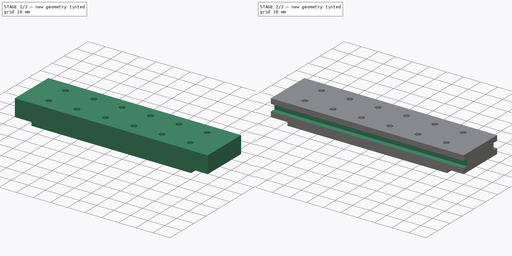
[diagram: build sequence overview — one tinted view per stage of 2, left to right]
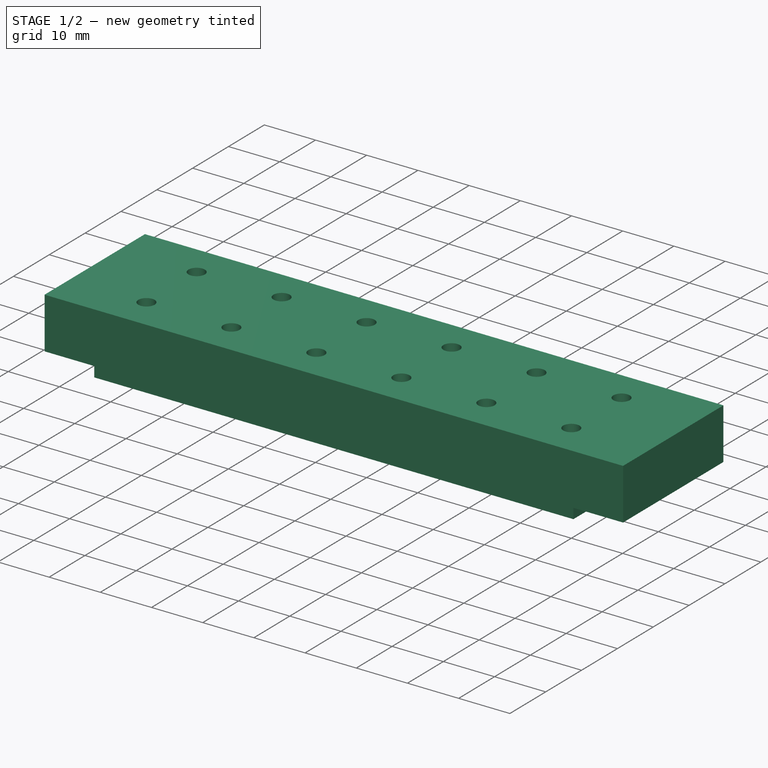
[diagram: stage 1 of 2 — iso view after this stage's code; geometry added in this stage tinted green]
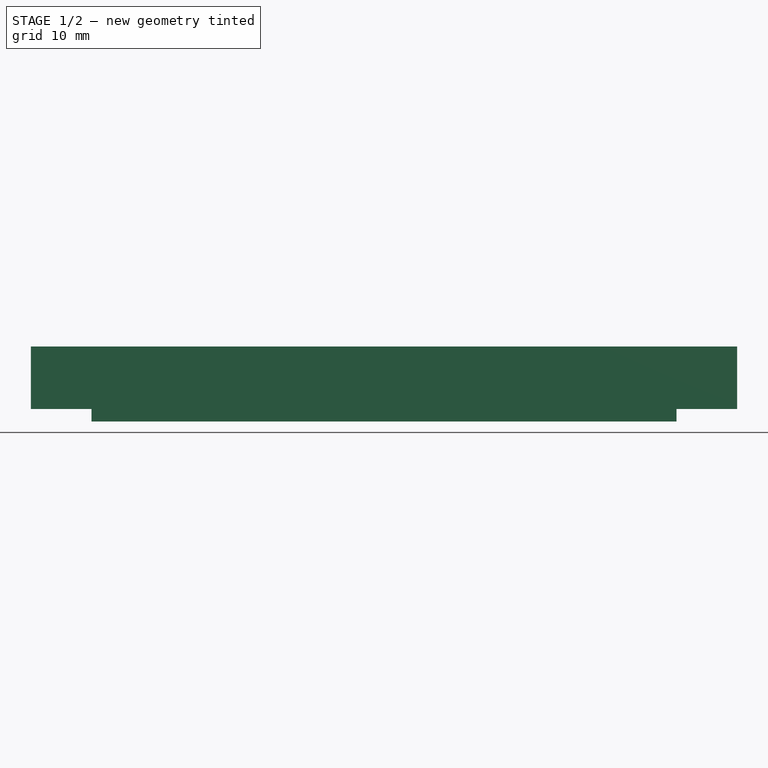
[diagram: stage 1 of 2 — front view after this stage's code; geometry added in this stage tinted green]
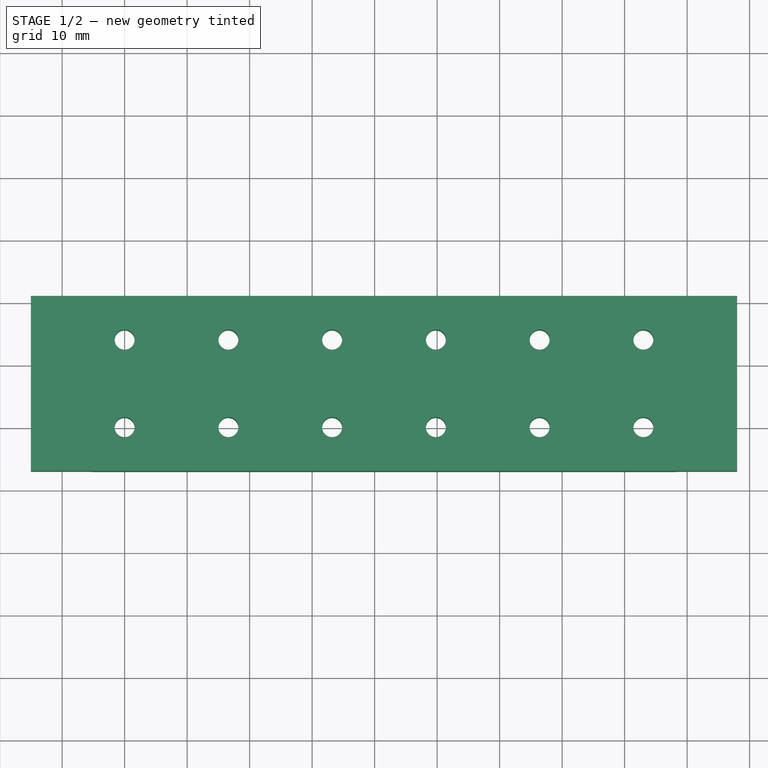
[diagram: stage 1 of 2 — top view after this stage's code; geometry added in this stage tinted green]
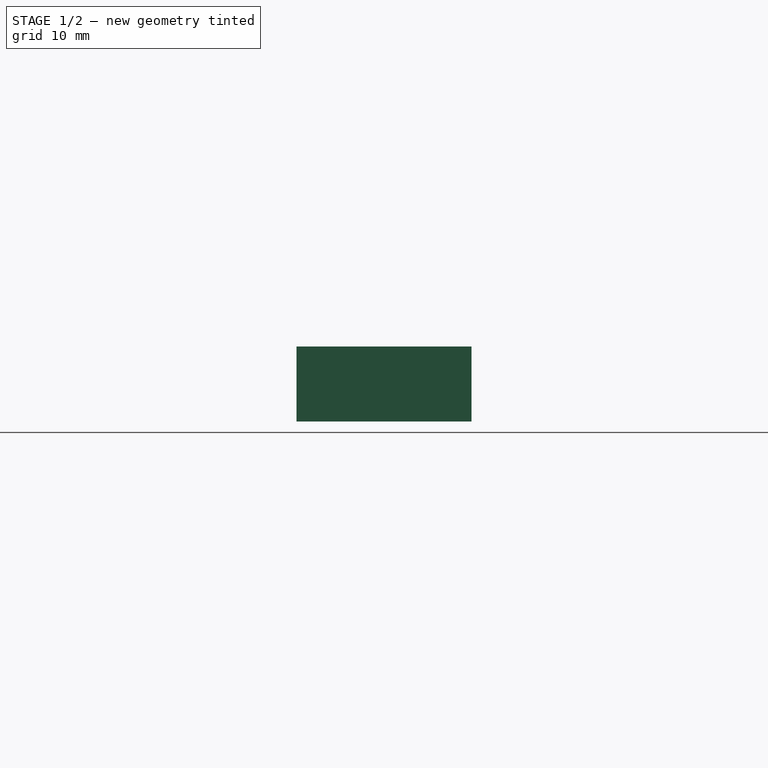
[diagram: stage 1 of 2 — right view after this stage's code; geometry added in this stage tinted green]
FCSTD DOCUMENT  (FreeCAD 0.17R13541 (Git))
Label: BikeLights1
License: All rights reserved
LicenseURL: http://en.wikipedia.org/wiki/All_rights_reserved
objects: Sketcher::SketchObject×4, PartDesign::Pad×2, PartDesign::Pocket×2, PartDesign::Body×1
note: 13 computed .brp shape members not serialized (recipe doc carries the construction recipe); baked Part::Feature solids carry a one-line shape summary decoded from their .brp

FEATURE [Sketcher::SketchObject] Sketch
  MapMode = 5
  Support = -> [XY_Plane]
  sketch-geometry (27):
    g0: LineSegment StartX=-15 StartY=-7 StartZ=0 EndX=98 EndY=-7 EndZ=0
    g1: LineSegment StartX=98 StartY=-7 StartZ=0 EndX=98 EndY=21 EndZ=0
    g2: LineSegment StartX=98 StartY=21 StartZ=0 EndX=-15 EndY=21 EndZ=0
    g3: LineSegment StartX=-15 StartY=21 StartZ=0 EndX=-15 EndY=-7 EndZ=0
    g4: Circle CenterX=1e-12 CenterY=0 CenterZ=0 NormalX=0 NormalY=0 NormalZ=1 AngleXU=0 Radius=1.6
    g5: Circle CenterX=0 CenterY=14 CenterZ=0 NormalX=0 NormalY=0 NormalZ=1 AngleXU=0 Radius=1.6
    g6: LineSegment [constr] StartX=1e-12 StartY=0 StartZ=0 EndX=0 EndY=14 EndZ=0
    g7: Circle CenterX=16.6 CenterY=2e-12 CenterZ=0 NormalX=0 NormalY=0 NormalZ=1 AngleXU=0 Radius=1.6
    g8: LineSegment [constr] StartX=1e-12 StartY=0 StartZ=0 EndX=16.6 EndY=2e-12 EndZ=0
    g9: Circle CenterX=16.6 CenterY=14 CenterZ=0 NormalX=0 NormalY=0 NormalZ=1 AngleXU=0 Radius=1.6
    g10: LineSegment [constr] StartX=16.6 StartY=2e-12 StartZ=0 EndX=16.6 EndY=14 EndZ=0
    g11: Circle CenterX=33.2 CenterY=3e-12 CenterZ=0 NormalX=0 NormalY=0 NormalZ=1 AngleXU=0 Radius=1.6
    g12: LineSegment [constr] StartX=16.6 StartY=2e-12 StartZ=0 EndX=33.2 EndY=3e-12 EndZ=0
    g13: Circle CenterX=33.2 CenterY=14 CenterZ=0 NormalX=0 NormalY=0 NormalZ=1 AngleXU=0 Radius=1.6
    g14: LineSegment [constr] StartX=33.2 StartY=3e-12 StartZ=0 EndX=33.2 EndY=14 EndZ=0
    g15: Circle CenterX=49.8 CenterY=5e-12 CenterZ=0 NormalX=0 NormalY=0 NormalZ=1 AngleXU=0 Radius=1.6
    g16: LineSegment [constr] StartX=33.2 StartY=3e-12 StartZ=0 EndX=49.8 EndY=5e-12 EndZ=0
    g17: Circle CenterX=49.8 CenterY=14 CenterZ=0 NormalX=0 NormalY=0 NormalZ=1 AngleXU=0 Radius=1.6
    g18: LineSegment [constr] StartX=49.8 StartY=5e-12 StartZ=0 EndX=49.8 EndY=14 EndZ=0
    g19: Circle CenterX=66.4 CenterY=7e-12 CenterZ=0 NormalX=0 NormalY=0 NormalZ=1 AngleXU=0 Radius=1.6
    g20: LineSegment [constr] StartX=49.8 StartY=5e-12 StartZ=0 EndX=66.4 EndY=7e-12 EndZ=0
    g21: Circle CenterX=66.4 CenterY=14 CenterZ=0 NormalX=0 NormalY=0 NormalZ=1 AngleXU=0 Radius=1.6
    g22: LineSegment [constr] StartX=66.4 StartY=7e-12 StartZ=0 EndX=66.4 EndY=14 EndZ=0
    g23: Circle CenterX=83 CenterY=9e-12 CenterZ=0 NormalX=0 NormalY=0 NormalZ=1 AngleXU=0 Radius=1.6
    g24: LineSegment [constr] StartX=66.4 StartY=7e-12 StartZ=0 EndX=83 EndY=9e-12 EndZ=0
    g25: Circle CenterX=83 CenterY=14 CenterZ=0 NormalX=0 NormalY=0 NormalZ=1 AngleXU=0 Radius=1.6
    g26: LineSegment [constr] StartX=83 StartY=9e-12 StartZ=0 EndX=83 EndY=14 EndZ=0
  constraints (70):
    c: Coincident(g0,g1)
    c: Coincident(g1,g2)
    c: Coincident(g2,g3)
    c: Coincident(g3,g0)
    c: Horizontal(g0)
    c: Horizontal(g2)
    c: Vertical(g1)
    c: Vertical(g3)
    c: DistanceY(g0,g-1) = 7
    c: DistanceY(g-1,g2) = 21
    c: Radius(g4) = 1.6
    c: Equal(g4,g5) = 3
    c: Coincident(g4,g6)
    c: Coincident(g5,g6)
    c: Distance(g6) = 14
    c: Angle(g6) = 1.5708
    c: Equal(g4,g7) = 3
    c: Coincident(g4,g8)
    c: Coincident(g7,g8)
    c: Distance(g8) = 16.6
    c: Perpendicular(g8,g6)
    c: Equal(g4,g9) = 3
    c: Coincident(g7,g10)
    c: Coincident(g9,g10)
    c: Equal(g6,g10)
    c: Parallel(g10,g6)
    c: Equal(g4,g11) = 3
    c: Coincident(g7,g12)
    c: Coincident(g11,g12)
    c: Equal(g8,g12)
    c: Perpendicular(g12,g6)
    c: Equal(g4,g13) = 3
    c: Coincident(g11,g14)
    c: Coincident(g13,g14)
    c: Equal(g6,g14)
    c: Parallel(g14,g6)
    c: Equal(g4,g15) = 3
    c: Coincident(g11,g16)
    c: Coincident(g15,g16)
    c: Equal(g8,g16)
    c: Perpendicular(g16,g6)
    c: Equal(g4,g17) = 3
    c: Coincident(g15,g18)
    c: Coincident(g17,g18)
    c: Equal(g6,g18)
    c: Parallel(g18,g6)
    c: Equal(g4,g19) = 3
    c: Coincident(g15,g20)
    c: Coincident(g19,g20)
    c: Equal(g8,g20)
    c: Perpendicular(g20,g6)
    c: Equal(g4,g21) = 3
    c: Coincident(g19,g22)
    c: Coincident(g21,g22)
    c: Equal(g6,g22)
    c: Parallel(g22,g6)
    c: Equal(g4,g23) = 3
    c: Coincident(g19,g24)
    c: Coincident(g23,g24)
    c: Equal(g8,g24)
    c: Perpendicular(g24,g6)
    c: Equal(g4,g25) = 3
    c: Coincident(g23,g26)
    c: Coincident(g25,g26)
    c: Equal(g6,g26)
    c: Parallel(g26,g6)
    c: PointOnObject(g5,g-2)
    c: Coincident(g4,g-1)
    c: DistanceX(g23,g0) = 15
    c: DistanceX(g0,g-1) = 15
FEATURE [Sketcher::SketchObject] Sketch001
  MapMode = 5
  Support = -> [XY_Plane]
  sketch-geometry (63):
    g0: LineSegment StartX=-5.3 StartY=-7 StartZ=0 EndX=88.3 EndY=-7 EndZ=0
    g1: LineSegment StartX=88.3 StartY=-7 StartZ=0 EndX=88.3 EndY=21 EndZ=0
    g2: LineSegment StartX=88.3 StartY=21 StartZ=0 EndX=-5.3 EndY=21 EndZ=0
    g3: LineSegment StartX=-5.3 StartY=21 StartZ=0 EndX=-5.3 EndY=-7 EndZ=0
    g4: LineSegment StartX=-2.6 StartY=-2.6 StartZ=0 EndX=2.6 EndY=-2.6 EndZ=0
    g5: LineSegment StartX=2.6 StartY=-2.6 StartZ=0 EndX=2.6 EndY=2.6 EndZ=0
    g6: LineSegment StartX=2.6 StartY=2.6 StartZ=0 EndX=-2.6 EndY=2.6 EndZ=0
    g7: LineSegment StartX=-2.6 StartY=2.6 StartZ=0 EndX=-2.6 EndY=-2.6 EndZ=0
    g8: LineSegment StartX=2.6 StartY=11.4 StartZ=0 EndX=2.6 EndY=16.6 EndZ=0
    g9: LineSegment StartX=2.6 StartY=16.6 StartZ=0 EndX=-2.6 EndY=16.6 EndZ=0
    g10: LineSegment StartX=-2.6 StartY=16.6 StartZ=0 EndX=-2.6 EndY=11.4 EndZ=0
    g11: LineSegment StartX=-2.6 StartY=11.4 StartZ=0 EndX=2.6 EndY=11.4 EndZ=0
    g12: LineSegment [constr] StartX=2.6 StartY=-2.6 StartZ=0 EndX=2.6 EndY=11.4 EndZ=0
    g13: LineSegment StartX=19.2 StartY=-2.6 StartZ=0 EndX=19.2 EndY=2.6 EndZ=0
    g14: LineSegment StartX=19.2 StartY=2.6 StartZ=0 EndX=14 EndY=2.6 EndZ=0
    g15: LineSegment StartX=14 StartY=2.6 StartZ=0 EndX=14 EndY=-2.6 EndZ=0
    g16: LineSegment StartX=14 StartY=-2.6 StartZ=0 EndX=19.2 EndY=-2.6 EndZ=0
    g17: LineSegment [constr] StartX=2.6 StartY=-2.6 StartZ=0 EndX=19.2 EndY=-2.6 EndZ=0
    g18: LineSegment StartX=19.2 StartY=11.4 StartZ=0 EndX=19.2 EndY=16.6 EndZ=0
    g19: LineSegment StartX=19.2 StartY=16.6 StartZ=0 EndX=14 EndY=16.6 EndZ=0
    g20: LineSegment StartX=14 StartY=16.6 StartZ=0 EndX=14 EndY=11.4 EndZ=0
    g21: LineSegment StartX=14 StartY=11.4 StartZ=0 EndX=19.2 EndY=11.4 EndZ=0
    g22: LineSegment [constr] StartX=19.2 StartY=-2.6 StartZ=0 EndX=19.2 EndY=11.4 EndZ=0
    g23: LineSegment StartX=35.8 StartY=-2.6 StartZ=0 EndX=35.8 EndY=2.6 EndZ=0
    g24: LineSegment StartX=35.8 StartY=2.6 StartZ=0 EndX=30.6 EndY=2.6 EndZ=0
    g25: LineSegment StartX=30.6 StartY=2.6 StartZ=0 EndX=30.6 EndY=-2.6 EndZ=0
    g26: LineSegment StartX=30.6 StartY=-2.6 StartZ=0 EndX=35.8 EndY=-2.6 EndZ=0
    g27: LineSegment [constr] StartX=19.2 StartY=-2.6 StartZ=0 EndX=35.8 EndY=-2.6 EndZ=0
    g28: LineSegment StartX=35.8 StartY=11.4 StartZ=0 EndX=35.8 EndY=16.6 EndZ=0
    g29: LineSegment StartX=35.8 StartY=16.6 StartZ=0 EndX=30.6 EndY=16.6 EndZ=0
    g30: LineSegment StartX=30.6 StartY=16.6 StartZ=0 EndX=30.6 EndY=11.4 EndZ=0
    g31: LineSegment StartX=30.6 StartY=11.4 StartZ=0 EndX=35.8 EndY=11.4 EndZ=0
    g32: LineSegment [constr] StartX=35.8 StartY=-2.6 StartZ=0 EndX=35.8 EndY=11.4 EndZ=0
    g33: LineSegment StartX=52.4 StartY=-2.6 StartZ=0 EndX=52.4 EndY=2.6 EndZ=0
    g34: LineSegment StartX=52.4 StartY=2.6 StartZ=0 EndX=47.2 EndY=2.6 EndZ=0
    g35: LineSegment StartX=47.2 StartY=2.6 StartZ=0 EndX=47.2 EndY=-2.6 EndZ=0
    g36: LineSegment StartX=47.2 StartY=-2.6 StartZ=0 EndX=52.4 EndY=-2.6 EndZ=0
    g37: LineSegment [constr] StartX=35.8 StartY=-2.6 StartZ=0 EndX=52.4 EndY=-2.6 EndZ=0
    g38: LineSegment StartX=52.4 StartY=11.4 StartZ=0 EndX=52.4 EndY=16.6 EndZ=0
    g39: LineSegment StartX=52.4 StartY=16.6 StartZ=0 EndX=47.2 EndY=16.6 EndZ=0
    g40: LineSegment StartX=47.2 StartY=16.6 StartZ=0 EndX=47.2 EndY=11.4 EndZ=0
    g41: LineSegment StartX=47.2 StartY=11.4 StartZ=0 EndX=52.4 EndY=11.4 EndZ=0
    g42: LineSegment [constr] StartX=52.4 StartY=-2.6 StartZ=0 EndX=52.4 EndY=11.4 EndZ=0
    g43: LineSegment StartX=69 StartY=-2.6 StartZ=0 EndX=69 EndY=2.6 EndZ=0
    g44: LineSegment StartX=69 StartY=2.6 StartZ=0 EndX=63.8 EndY=2.6 EndZ=0
    g45: LineSegment StartX=63.8 StartY=2.6 StartZ=0 EndX=63.8 EndY=-2.6 EndZ=0
    g46: LineSegment StartX=63.8 StartY=-2.6 StartZ=0 EndX=69 EndY=-2.6 EndZ=0
    g47: LineSegment [constr] StartX=52.4 StartY=-2.6 StartZ=0 EndX=69 EndY=-2.6 EndZ=0
    g48: LineSegment StartX=69 StartY=11.4 StartZ=0 EndX=69 EndY=16.6 EndZ=0
    g49: LineSegment StartX=69 StartY=16.6 StartZ=0 EndX=63.8 EndY=16.6 EndZ=0
    g50: LineSegment StartX=63.8 StartY=16.6 StartZ=0 EndX=63.8 EndY=11.4 EndZ=0
    g51: LineSegment StartX=63.8 StartY=11.4 StartZ=0 EndX=69 EndY=11.4 EndZ=0
    g52: LineSegment [constr] StartX=69 StartY=-2.6 StartZ=0 EndX=69 EndY=11.4 EndZ=0
    g53: LineSegment StartX=85.6 StartY=-2.6 StartZ=0 EndX=85.6 EndY=2.6 EndZ=0
    g54: LineSegment StartX=85.6 StartY=2.6 StartZ=0 EndX=80.4 EndY=2.6 EndZ=0
    g55: LineSegment StartX=80.4 StartY=2.6 StartZ=0 EndX=80.4 EndY=-2.6 EndZ=0
    g56: LineSegment StartX=80.4 StartY=-2.6 StartZ=0 EndX=85.6 EndY=-2.6 EndZ=0
    g57: LineSegment [constr] StartX=69 StartY=-2.6 StartZ=0 EndX=85.6 EndY=-2.6 EndZ=0
    g58: LineSegment StartX=85.6 StartY=11.4 StartZ=0 EndX=85.6 EndY=16.6 EndZ=0
    g59: LineSegment StartX=85.6 StartY=16.6 StartZ=0 EndX=80.4 EndY=16.6 EndZ=0
    g60: LineSegment StartX=80.4 StartY=16.6 StartZ=0 EndX=80.4 EndY=11.4 EndZ=0
    g61: LineSegment StartX=80.4 StartY=11.4 StartZ=0 EndX=85.6 EndY=11.4 EndZ=0
    g62: LineSegment [constr] StartX=85.6 StartY=-2.6 StartZ=0 EndX=85.6 EndY=11.4 EndZ=0
  constraints (177):
    c: Coincident(g0,g1)
    c: Coincident(g1,g2)
    c: Coincident(g2,g3)
    c: Coincident(g3,g0)
    c: Horizontal(g0)
    c: Horizontal(g2)
    c: Vertical(g1)
    c: Vertical(g3)
    c: DistanceY(g0,g-1) = 7
    c: DistanceX(g0,g-1) = 5.3
    c: DistanceY(g-1,g2) = 21
    c: DistanceX(g-1,g0) = 88.3
    c: Coincident(g4,g5)
    c: Coincident(g5,g6)
    c: Coincident(g6,g7)
    c: Coincident(g7,g4)
    c: Horizontal(g4)
    c: Horizontal(g6)
    c: Vertical(g5)
    c: Vertical(g7)
    c: Symmetric(g5,g4,g-1)
    c: DistanceY(g5,g5) = 5.2
    c: DistanceX(g6,g6) = 5.2
    c: Coincident(g11,g8)
    c: Coincident(g8,g9)
    c: Coincident(g9,g10)
    c: Coincident(g10,g11)
    c: Horizontal(g11)
    c: Horizontal(g9)
    c: Vertical(g8)
    c: Vertical(g10)
    c: Equal(g5,g8) = 5.2
    c: Equal(g6,g9) = 5.2
    c: Coincident(g5,g12)
    c: Coincident(g8,g12)
    c: Distance(g12) = 14
    c: Angle(g12) = 1.5708
    c: Coincident(g16,g13)
    c: Coincident(g13,g14)
    c: Coincident(g14,g15)
    c: Coincident(g15,g16)
    c: Horizontal(g16)
    c: Horizontal(g14)
    c: Vertical(g13)
    c: Vertical(g15)
    c: Equal(g5,g13) = 5.2
    c: Equal(g6,g14) = 5.2
    c: Coincident(g5,g17)
    c: Coincident(g13,g17)
    c: Distance(g17) = 16.6
    c: Perpendicular(g17,g12)
    c: Coincident(g21,g18)
    c: Coincident(g18,g19)
    c: Coincident(g19,g20)
    c: Coincident(g20,g21)
    c: Horizontal(g21)
    c: Horizontal(g19)
    c: Vertical(g18)
    c: Vertical(g20)
    c: Equal(g5,g18) = 5.2
    c: Equal(g6,g19) = 5.2
    c: Coincident(g13,g22)
    c: Coincident(g18,g22)
    c: Equal(g12,g22)
    c: Parallel(g22,g12)
    c: Coincident(g26,g23)
    c: Coincident(g23,g24)
    c: Coincident(g24,g25)
    c: Coincident(g25,g26)
    c: Horizontal(g26)
    c: Horizontal(g24)
    c: Vertical(g23)
    c: Vertical(g25)
    c: Equal(g5,g23) = 5.2
    c: Equal(g6,g24) = 5.2
    c: Coincident(g13,g27)
    c: Coincident(g23,g27)
    c: Equal(g17,g27)
    c: Perpendicular(g27,g12)
    c: Coincident(g31,g28)
    c: Coincident(g28,g29)
    c: Coincident(g29,g30)
    c: Coincident(g30,g31)
    c: Horizontal(g31)
    c: Horizontal(g29)
    c: Vertical(g28)
    c: Vertical(g30)
    c: Equal(g5,g28) = 5.2
    c: Equal(g6,g29) = 5.2
    c: Coincident(g23,g32)
    c: Coincident(g28,g32)
    c: Equal(g12,g32)
    c: Parallel(g32,g12)
    c: Coincident(g36,g33)
    c: Coincident(g33,g34)
    c: Coincident(g34,g35)
    c: Coincident(g35,g36)
    c: Horizontal(g36)
    c: Horizontal(g34)
    c: Vertical(g33)
    c: Vertical(g35)
    c: Equal(g5,g33) = 5.2
    c: Equal(g6,g34) = 5.2
    c: Coincident(g23,g37)
    c: Coincident(g33,g37)
    c: Equal(g17,g37)
    c: Perpendicular(g37,g12)
    c: Coincident(g41,g38)
    c: Coincident(g38,g39)
    c: Coincident(g39,g40)
    c: Coincident(g40,g41)
    c: Horizontal(g41)
    c: Horizontal(g39)
    c: Vertical(g38)
    c: Vertical(g40)
    c: Equal(g5,g38) = 5.2
    c: Equal(g6,g39) = 5.2
    c: Coincident(g33,g42)
    c: Coincident(g38,g42)
    c: Equal(g12,g42)
    c: Parallel(g42,g12)
    c: Coincident(g46,g43)
    c: Coincident(g43,g44)
    c: Coincident(g44,g45)
    c: Coincident(g45,g46)
    c: Horizontal(g46)
    c: Horizontal(g44)
    c: Vertical(g43)
    c: Vertical(g45)
    c: Equal(g5,g43) = 5.2
    c: Equal(g6,g44) = 5.2
    c: Coincident(g33,g47)
    c: Coincident(g43,g47)
    c: Equal(g17,g47)
    c: Perpendicular(g47,g12)
    c: Coincident(g51,g48)
    c: Coincident(g48,g49)
    c: Coincident(g49,g50)
    c: Coincident(g50,g51)
    c: Horizontal(g51)
    c: Horizontal(g49)
    c: Vertical(g48)
    c: Vertical(g50)
    c: Equal(g5,g48) = 5.2
    c: Equal(g6,g49) = 5.2
    c: Coincident(g43,g52)
    c: Coincident(g48,g52)
    c: Equal(g12,g52)
    c: Parallel(g52,g12)
    c: Coincident(g56,g53)
    c: Coincident(g53,g54)
    c: Coincident(g54,g55)
    c: Coincident(g55,g56)
    c: Horizontal(g56)
    c: Horizontal(g54)
    c: Vertical(g53)
    c: Vertical(g55)
    c: Equal(g5,g53) = 5.2
    c: Equal(g6,g54) = 5.2
    c: Coincident(g43,g57)
    c: Coincident(g53,g57)
    c: Equal(g17,g57)
    c: Perpendicular(g57,g12)
    c: Coincident(g61,g58)
    c: Coincident(g58,g59)
    c: Coincident(g59,g60)
    c: Coincident(g60,g61)
    c: Horizontal(g61)
    c: Horizontal(g59)
    c: Vertical(g58)
    c: Vertical(g60)
    c: Equal(g5,g58) = 5.2
    c: Equal(g6,g59) = 5.2
    c: Coincident(g53,g62)
    c: Coincident(g58,g62)
    c: Equal(g12,g62)
    c: Parallel(g62,g12)
FEATURE [PartDesign::Pad] Pad
  Length = 10
  Length2 = 100
  Profile = -> Sketch
  Type = 0
FEATURE [PartDesign::Pad] Pad001
  BaseFeature = -> Pad
  Length = 2
  Length2 = 100
  Profile = -> Sketch001
  Reversed = true
  Type = 0
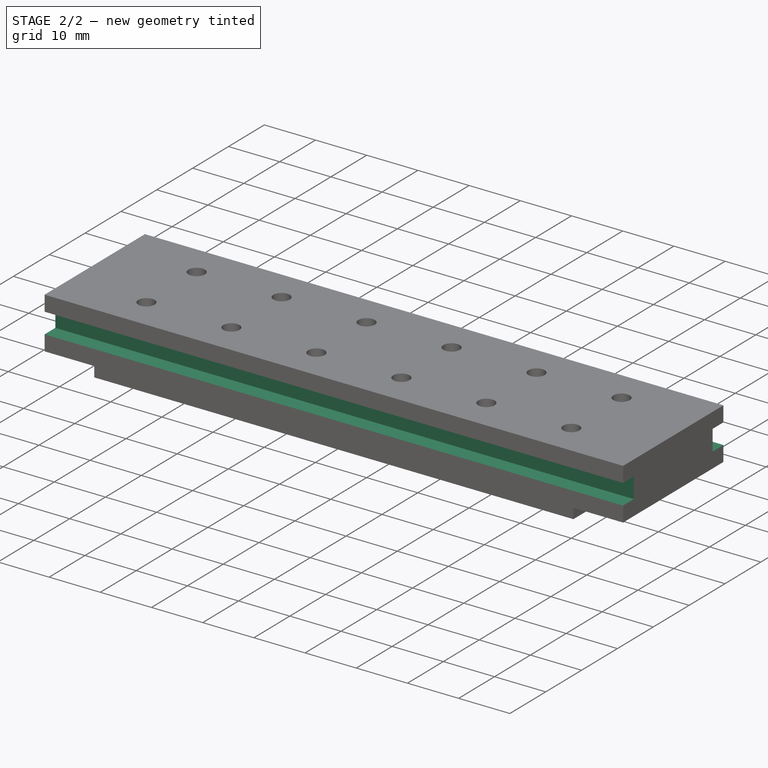
[diagram: stage 2 of 2 — iso view after this stage's code; geometry added in this stage tinted green]
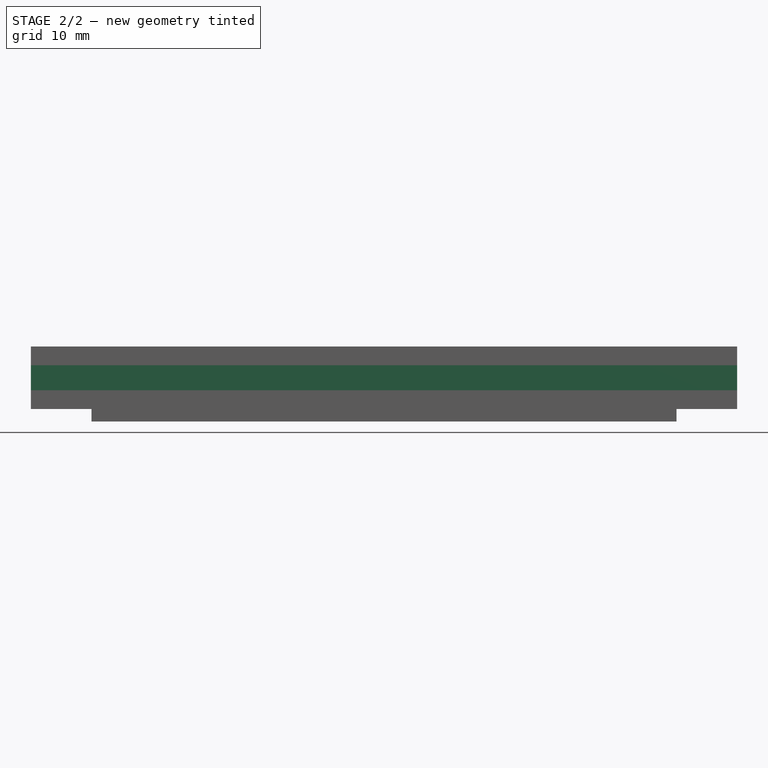
[diagram: stage 2 of 2 — front view after this stage's code; geometry added in this stage tinted green]
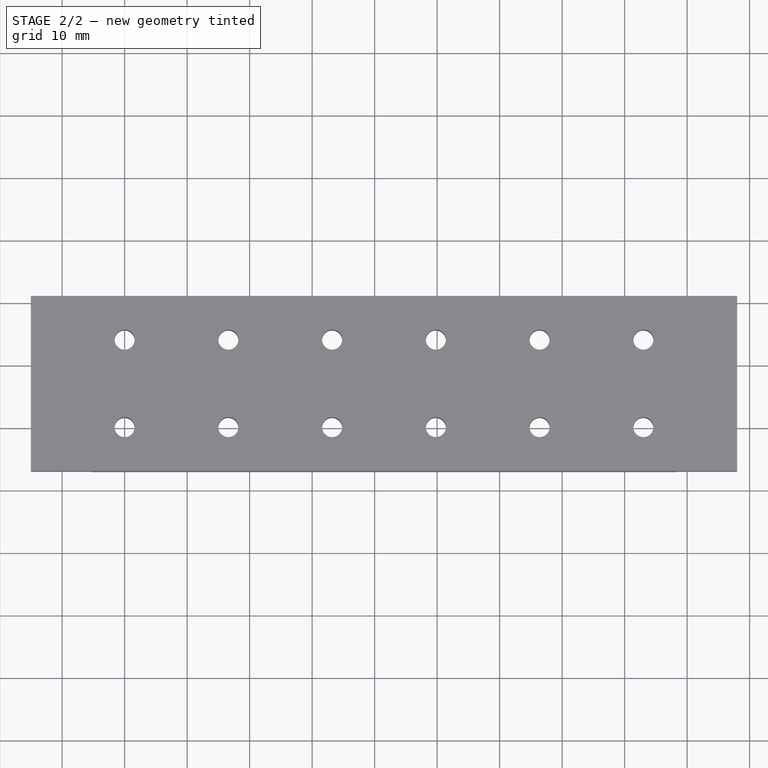
[diagram: stage 2 of 2 — top view after this stage's code; geometry added in this stage tinted green]
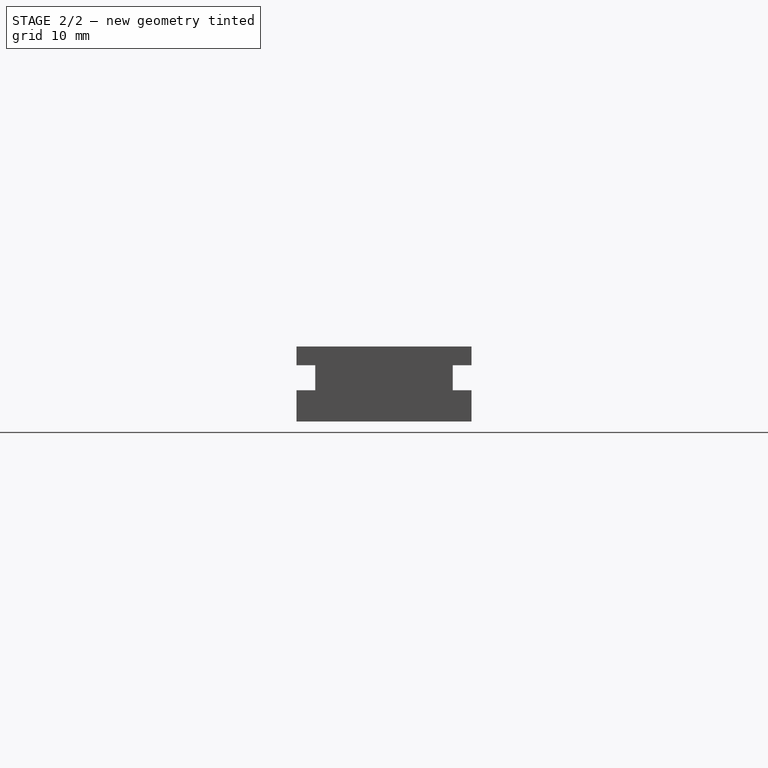
[diagram: stage 2 of 2 — right view after this stage's code; geometry added in this stage tinted green]
FEATURE [Sketcher::SketchObject] Sketch002
  MapMode = 5
  Placement = pos=(-15,0,0) rot=(0.57735,-0.57735,-0.57735;2.0944rad)
  Support = -> [Pad001]
  sketch-geometry (8):
    g0: LineSegment StartX=-21 StartY=3 StartZ=0 EndX=-18 EndY=3 EndZ=0
    g1: LineSegment StartX=-18 StartY=3 StartZ=0 EndX=-18 EndY=7 EndZ=0
    g2: LineSegment StartX=-18 StartY=7 StartZ=0 EndX=-21 EndY=7 EndZ=0
    g3: LineSegment StartX=-21 StartY=7 StartZ=0 EndX=-21 EndY=3 EndZ=0
    g4: LineSegment StartX=4 StartY=3 StartZ=0 EndX=7 EndY=3 EndZ=0
    g5: LineSegment StartX=7 StartY=3 StartZ=0 EndX=7 EndY=7 EndZ=0
    g6: LineSegment StartX=7 StartY=7 StartZ=0 EndX=4 EndY=7 EndZ=0
    g7: LineSegment StartX=4 StartY=7 StartZ=0 EndX=4 EndY=3 EndZ=0
  constraints (24):
    c: Coincident(g0,g1)
    c: Coincident(g1,g2)
    c: Coincident(g2,g3)
    c: Coincident(g3,g0)
    c: Horizontal(g0)
    c: Horizontal(g2)
    c: Vertical(g1)
    c: Vertical(g3)
    c: Coincident(g4,g5)
    c: Coincident(g5,g6)
    c: Coincident(g6,g7)
    c: Coincident(g7,g4)
    c: Horizontal(g4)
    c: Horizontal(g6)
    c: Vertical(g5)
    c: Vertical(g7)
    c: DistanceX(g4,g4) = 3
    c: DistanceX(g0,g0) = 3
    c: DistanceY(g3,g3) = 4
    c: DistanceY(g5,g5) = 4
    c: DistanceX(g4) = 4
    c: DistanceY(g4) = 3
    c: DistanceX(g0) = -18
    c: DistanceY(g0) = 3
FEATURE [PartDesign::Pocket] Pocket
  BaseFeature = -> Pad001
  Length = 5
  Length2 = 100
  Profile = -> Sketch002
  Type = 1
FEATURE [Sketcher::SketchObject] Sketch003
  MapMode = 5
  Placement = pos=(0,0,-2) rot=(0,0,1;0rad)
  sketch-geometry (59):
    g0: LineSegment StartX=-2.6 StartY=-3.6 StartZ=0 EndX=2.6 EndY=-3.6 EndZ=0
    g1: LineSegment StartX=2.6 StartY=-3.6 StartZ=0 EndX=2.6 EndY=3.6 EndZ=0
    g2: LineSegment StartX=2.6 StartY=3.6 StartZ=0 EndX=-2.6 EndY=3.6 EndZ=0
    g3: LineSegment StartX=-2.6 StartY=3.6 StartZ=0 EndX=-2.6 EndY=-3.6 EndZ=0
    g4: LineSegment StartX=2.6 StartY=10.4 StartZ=0 EndX=2.6 EndY=17.6 EndZ=0
    g5: LineSegment StartX=2.6 StartY=17.6 StartZ=0 EndX=-2.6 EndY=17.6 EndZ=0
    g6: LineSegment StartX=-2.6 StartY=17.6 StartZ=0 EndX=-2.6 EndY=10.4 EndZ=0
    g7: LineSegment StartX=-2.6 StartY=10.4 StartZ=0 EndX=2.6 EndY=10.4 EndZ=0
    g8: LineSegment [constr] StartX=2.6 StartY=-3.6 StartZ=0 EndX=2.6 EndY=10.4 EndZ=0
    g9: LineSegment StartX=19.2 StartY=-3.6 StartZ=0 EndX=19.2 EndY=3.6 EndZ=0
    g10: LineSegment StartX=19.2 StartY=3.6 StartZ=0 EndX=14 EndY=3.6 EndZ=0
    g11: LineSegment StartX=14 StartY=3.6 StartZ=0 EndX=14 EndY=-3.6 EndZ=0
    g12: LineSegment StartX=14 StartY=-3.6 StartZ=0 EndX=19.2 EndY=-3.6 EndZ=0
    g13: LineSegment [constr] StartX=2.6 StartY=-3.6 StartZ=0 EndX=19.2 EndY=-3.6 EndZ=0
    g14: LineSegment StartX=19.2 StartY=10.4 StartZ=0 EndX=19.2 EndY=17.6 EndZ=0
    g15: LineSegment StartX=19.2 StartY=17.6 StartZ=0 EndX=14 EndY=17.6 EndZ=0
    g16: LineSegment StartX=14 StartY=17.6 StartZ=0 EndX=14 EndY=10.4 EndZ=0
    g17: LineSegment StartX=14 StartY=10.4 StartZ=0 EndX=19.2 EndY=10.4 EndZ=0
    g18: LineSegment [constr] StartX=19.2 StartY=-3.6 StartZ=0 EndX=19.2 EndY=10.4 EndZ=0
    g19: LineSegment StartX=35.8 StartY=-3.6 StartZ=0 EndX=35.8 EndY=3.6 EndZ=0
    g20: LineSegment StartX=35.8 StartY=3.6 StartZ=0 EndX=30.6 EndY=3.6 EndZ=0
    g21: LineSegment StartX=30.6 StartY=3.6 StartZ=0 EndX=30.6 EndY=-3.6 EndZ=0
    g22: LineSegment StartX=30.6 StartY=-3.6 StartZ=0 EndX=35.8 EndY=-3.6 EndZ=0
    g23: LineSegment [constr] StartX=19.2 StartY=-3.6 StartZ=0 EndX=35.8 EndY=-3.6 EndZ=0
    g24: LineSegment StartX=35.8 StartY=10.4 StartZ=0 EndX=35.8 EndY=17.6 EndZ=0
    g25: LineSegment StartX=35.8 StartY=17.6 StartZ=0 EndX=30.6 EndY=17.6 EndZ=0
    g26: LineSegment StartX=30.6 StartY=17.6 StartZ=0 EndX=30.6 EndY=10.4 EndZ=0
    g27: LineSegment StartX=30.6 StartY=10.4 StartZ=0 EndX=35.8 EndY=10.4 EndZ=0
    g28: LineSegment [constr] StartX=35.8 StartY=-3.6 StartZ=0 EndX=35.8 EndY=10.4 EndZ=0
    g29: LineSegment StartX=52.4 StartY=-3.6 StartZ=0 EndX=52.4 EndY=3.6 EndZ=0
    g30: LineSegment StartX=52.4 StartY=3.6 StartZ=0 EndX=47.2 EndY=3.6 EndZ=0
    g31: LineSegment StartX=47.2 StartY=3.6 StartZ=0 EndX=47.2 EndY=-3.6 EndZ=0
    g32: LineSegment StartX=47.2 StartY=-3.6 StartZ=0 EndX=52.4 EndY=-3.6 EndZ=0
    g33: LineSegment [constr] StartX=35.8 StartY=-3.6 StartZ=0 EndX=52.4 EndY=-3.6 EndZ=0
    g34: LineSegment StartX=52.4 StartY=10.4 StartZ=0 EndX=52.4 EndY=17.6 EndZ=0
    g35: LineSegment StartX=52.4 StartY=17.6 StartZ=0 EndX=47.2 EndY=17.6 EndZ=0
    g36: LineSegment StartX=47.2 StartY=17.6 StartZ=0 EndX=47.2 EndY=10.4 EndZ=0
    g37: LineSegment StartX=47.2 StartY=10.4 StartZ=0 EndX=52.4 EndY=10.4 EndZ=0
    g38: LineSegment [constr] StartX=52.4 StartY=-3.6 StartZ=0 EndX=52.4 EndY=10.4 EndZ=0
    g39: LineSegment StartX=69 StartY=-3.6 StartZ=0 EndX=69 EndY=3.6 EndZ=0
    g40: LineSegment StartX=69 StartY=3.6 StartZ=0 EndX=63.8 EndY=3.6 EndZ=0
    g41: LineSegment StartX=63.8 StartY=3.6 StartZ=0 EndX=63.8 EndY=-3.6 EndZ=0
    g42: LineSegment StartX=63.8 StartY=-3.6 StartZ=0 EndX=69 EndY=-3.6 EndZ=0
    g43: LineSegment [constr] StartX=52.4 StartY=-3.6 StartZ=0 EndX=69 EndY=-3.6 EndZ=0
    g44: LineSegment StartX=69 StartY=10.4 StartZ=0 EndX=69 EndY=17.6 EndZ=0
    g45: LineSegment StartX=69 StartY=17.6 StartZ=0 EndX=63.8 EndY=17.6 EndZ=0
    g46: LineSegment StartX=63.8 StartY=17.6 StartZ=0 EndX=63.8 EndY=10.4 EndZ=0
    g47: LineSegment StartX=63.8 StartY=10.4 StartZ=0 EndX=69 EndY=10.4 EndZ=0
    g48: LineSegment [constr] StartX=69 StartY=-3.6 StartZ=0 EndX=69 EndY=10.4 EndZ=0
    g49: LineSegment StartX=85.6 StartY=-3.6 StartZ=0 EndX=85.6 EndY=3.6 EndZ=0
    g50: LineSegment StartX=85.6 StartY=3.6 StartZ=0 EndX=80.4 EndY=3.6 EndZ=0
    g51: LineSegment StartX=80.4 StartY=3.6 StartZ=0 EndX=80.4 EndY=-3.6 EndZ=0
    g52: LineSegment StartX=80.4 StartY=-3.6 StartZ=0 EndX=85.6 EndY=-3.6 EndZ=0
    g53: LineSegment [constr] StartX=69 StartY=-3.6 StartZ=0 EndX=85.6 EndY=-3.6 EndZ=0
    g54: LineSegment StartX=85.6 StartY=10.4 StartZ=0 EndX=85.6 EndY=17.6 EndZ=0
    g55: LineSegment StartX=85.6 StartY=17.6 StartZ=0 EndX=80.4 EndY=17.6 EndZ=0
    g56: LineSegment StartX=80.4 StartY=17.6 StartZ=0 EndX=80.4 EndY=10.4 EndZ=0
    g57: LineSegment StartX=80.4 StartY=10.4 StartZ=0 EndX=85.6 EndY=10.4 EndZ=0
    g58: LineSegment [constr] StartX=85.6 StartY=-3.6 StartZ=0 EndX=85.6 EndY=10.4 EndZ=0
  constraints (165):
    c: Coincident(g0,g1)
    c: Coincident(g1,g2)
    c: Coincident(g2,g3)
    c: Coincident(g3,g0)
    c: Horizontal(g0)
    c: Horizontal(g2)
    c: Vertical(g1)
    c: Vertical(g3)
    c: Symmetric(g1,g0,g-1)
    c: DistanceY(g1,g1) = 7.2
    c: DistanceX(g2,g2) = 5.2
    c: Coincident(g7,g4)
    c: Coincident(g4,g5)
    c: Coincident(g5,g6)
    c: Coincident(g6,g7)
    c: Horizontal(g7)
    c: Horizontal(g5)
    c: Vertical(g4)
    c: Vertical(g6)
    c: Equal(g1,g4) = 5.2
    c: Equal(g2,g5) = 5.2
    c: Coincident(g1,g8)
    c: Coincident(g4,g8)
    c: Distance(g8) = 14
    c: Angle(g8) = 1.5708
    c: Coincident(g12,g9)
    c: Coincident(g9,g10)
    c: Coincident(g10,g11)
    c: Coincident(g11,g12)
    c: Horizontal(g12)
    c: Horizontal(g10)
    c: Vertical(g9)
    c: Vertical(g11)
    c: Equal(g1,g9) = 5.2
    c: Equal(g2,g10) = 5.2
    c: Coincident(g1,g13)
    c: Coincident(g9,g13)
    c: Distance(g13) = 16.6
    c: Perpendicular(g13,g8)
    c: Coincident(g17,g14)
    c: Coincident(g14,g15)
    c: Coincident(g15,g16)
    c: Coincident(g16,g17)
    c: Horizontal(g17)
    c: Horizontal(g15)
    c: Vertical(g14)
    c: Vertical(g16)
    c: Equal(g1,g14) = 5.2
    c: Equal(g2,g15) = 5.2
    c: Coincident(g9,g18)
    c: Coincident(g14,g18)
    c: Equal(g8,g18)
    c: Parallel(g18,g8)
    c: Coincident(g22,g19)
    c: Coincident(g19,g20)
    c: Coincident(g20,g21)
    c: Coincident(g21,g22)
    c: Horizontal(g22)
    c: Horizontal(g20)
    c: Vertical(g19)
    c: Vertical(g21)
    c: Equal(g1,g19) = 5.2
    c: Equal(g2,g20) = 5.2
    c: Coincident(g9,g23)
    c: Coincident(g19,g23)
    c: Equal(g13,g23)
    c: Perpendicular(g23,g8)
    c: Coincident(g27,g24)
    c: Coincident(g24,g25)
    c: Coincident(g25,g26)
    c: Coincident(g26,g27)
    c: Horizontal(g27)
    c: Horizontal(g25)
    c: Vertical(g24)
    c: Vertical(g26)
    c: Equal(g1,g24) = 5.2
    c: Equal(g2,g25) = 5.2
    c: Coincident(g19,g28)
    c: Coincident(g24,g28)
    c: Equal(g8,g28)
    c: Parallel(g28,g8)
    c: Coincident(g32,g29)
    c: Coincident(g29,g30)
    c: Coincident(g30,g31)
    c: Coincident(g31,g32)
    c: Horizontal(g32)
    c: Horizontal(g30)
    c: Vertical(g29)
    c: Vertical(g31)
    c: Equal(g1,g29) = 5.2
    c: Equal(g2,g30) = 5.2
    c: Coincident(g19,g33)
    c: Coincident(g29,g33)
    c: Equal(g13,g33)
    c: Perpendicular(g33,g8)
    c: Coincident(g37,g34)
    c: Coincident(g34,g35)
    c: Coincident(g35,g36)
    c: Coincident(g36,g37)
    c: Horizontal(g37)
    c: Horizontal(g35)
    c: Vertical(g34)
    c: Vertical(g36)
    c: Equal(g1,g34) = 5.2
    c: Equal(g2,g35) = 5.2
    c: Coincident(g29,g38)
    c: Coincident(g34,g38)
    c: Equal(g8,g38)
    c: Parallel(g38,g8)
    c: Coincident(g42,g39)
    c: Coincident(g39,g40)
    c: Coincident(g40,g41)
    c: Coincident(g41,g42)
    c: Horizontal(g42)
    c: Horizontal(g40)
    c: Vertical(g39)
    c: Vertical(g41)
    c: Equal(g1,g39) = 5.2
    c: Equal(g2,g40) = 5.2
    c: Coincident(g29,g43)
    c: Coincident(g39,g43)
    c: Equal(g13,g43)
    c: Perpendicular(g43,g8)
    c: Coincident(g47,g44)
    c: Coincident(g44,g45)
    c: Coincident(g45,g46)
    c: Coincident(g46,g47)
    c: Horizontal(g47)
    c: Horizontal(g45)
    c: Vertical(g44)
    c: Vertical(g46)
    c: Equal(g1,g44) = 5.2
    c: Equal(g2,g45) = 5.2
    c: Coincident(g39,g48)
    c: Coincident(g44,g48)
    c: Equal(g8,g48)
    c: Parallel(g48,g8)
    c: Coincident(g52,g49)
    c: Coincident(g49,g50)
    c: Coincident(g50,g51)
    c: Coincident(g51,g52)
    c: Horizontal(g52)
    c: Horizontal(g50)
    c: Vertical(g49)
    c: Vertical(g51)
    c: Equal(g1,g49) = 5.2
    c: Equal(g2,g50) = 5.2
    c: Coincident(g39,g53)
    c: Coincident(g49,g53)
    c: Equal(g13,g53)
    c: Perpendicular(g53,g8)
    c: Coincident(g57,g54)
    c: Coincident(g54,g55)
    c: Coincident(g55,g56)
    c: Coincident(g56,g57)
    c: Horizontal(g57)
    c: Horizontal(g55)
    c: Vertical(g54)
    c: Vertical(g56)
    c: Equal(g1,g54) = 5.2
    c: Equal(g2,g55) = 5.2
    c: Coincident(g49,g58)
    c: Coincident(g54,g58)
    c: Equal(g8,g58)
    c: Parallel(g58,g8)
FEATURE [PartDesign::Pocket] Pocket001
  BaseFeature = -> Pocket
  Length = 1
  Length2 = 100
  Profile = -> Sketch003
  Reversed = true
  Type = 0
FEATURE [PartDesign::Body] Body
  Group = -> [Sketch,Sketch001,Pad,Pad001,Sketch002,Pocket,Sketch003,Pocket001]
  Origin = -> Origin
  Tip = -> Pocket001
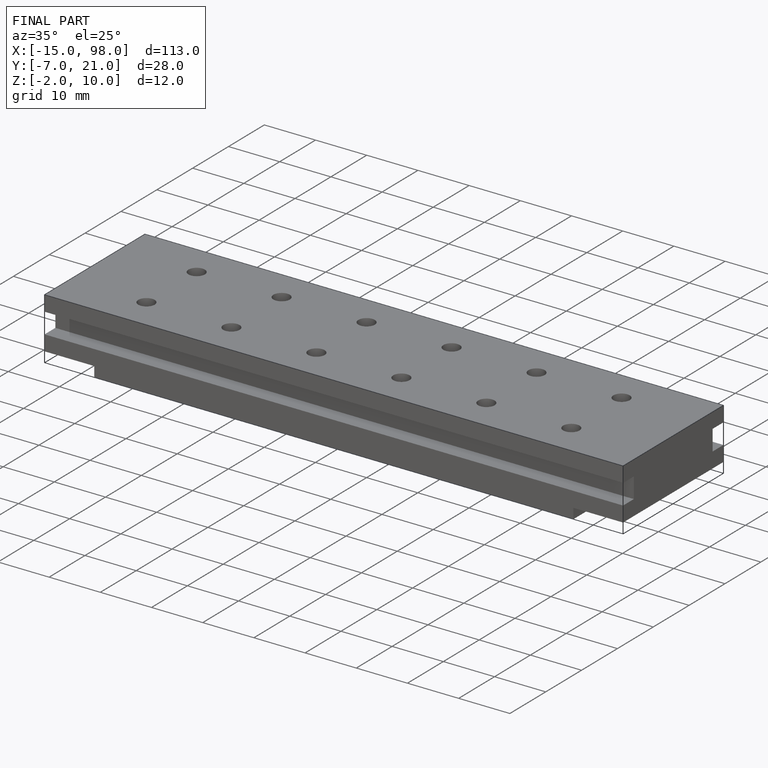
[diagram: finished part — iso view with bounding-box wireframe]
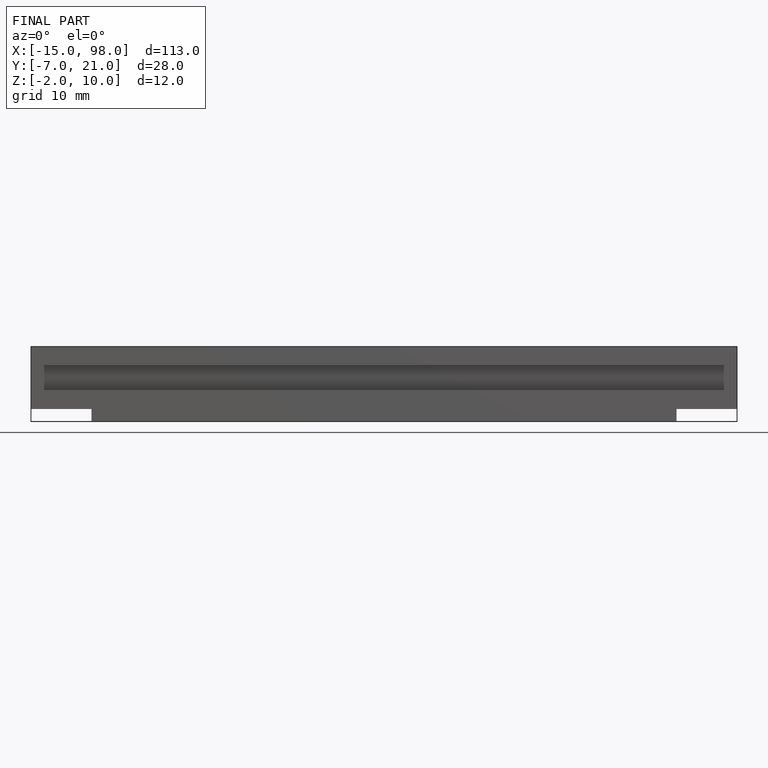
[diagram: finished part — front view with bounding-box wireframe]
